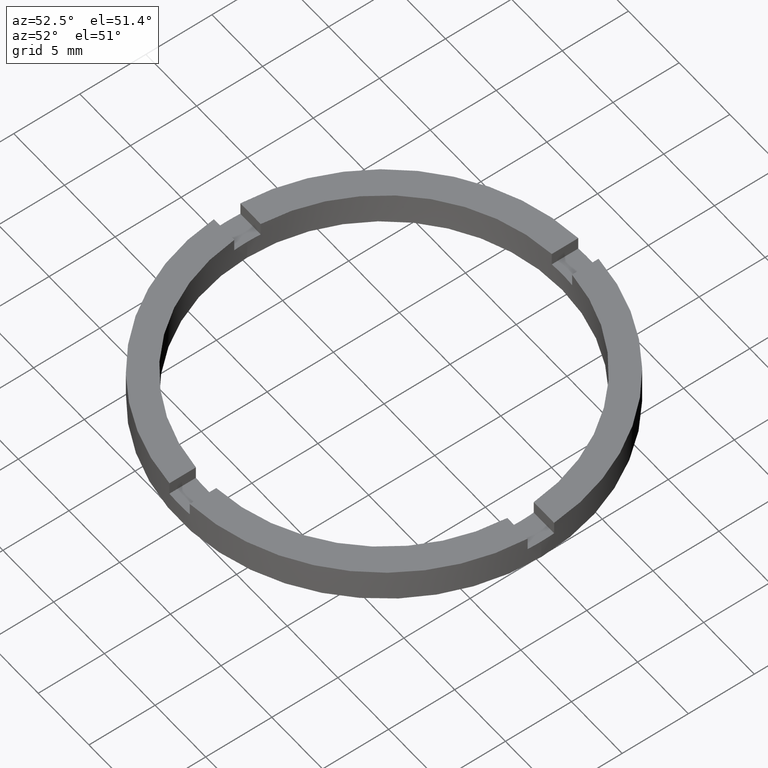
[diagram: clean part render]
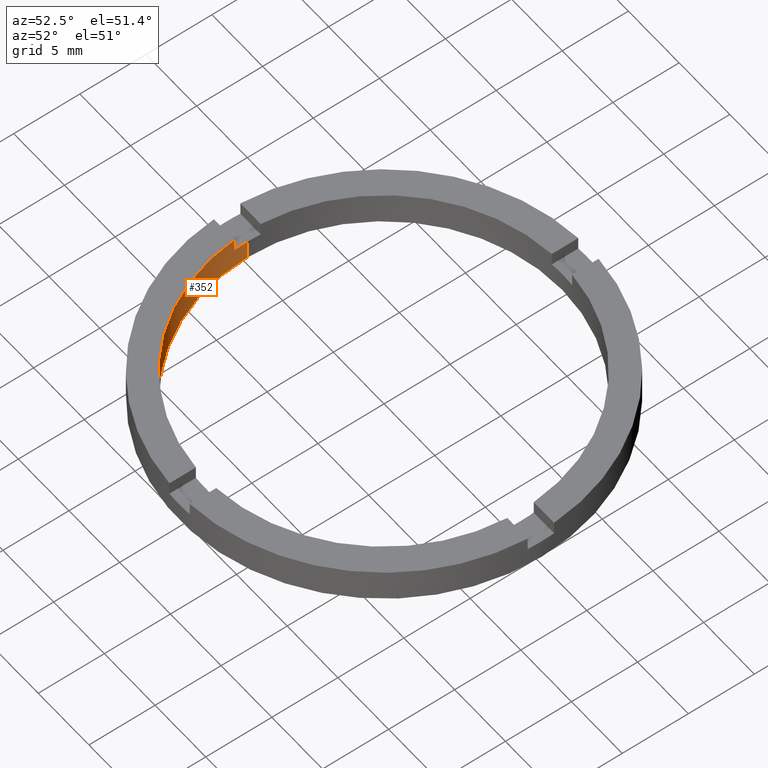
[diagram: same view with one face highlighted and labeled with its STEP entity id]
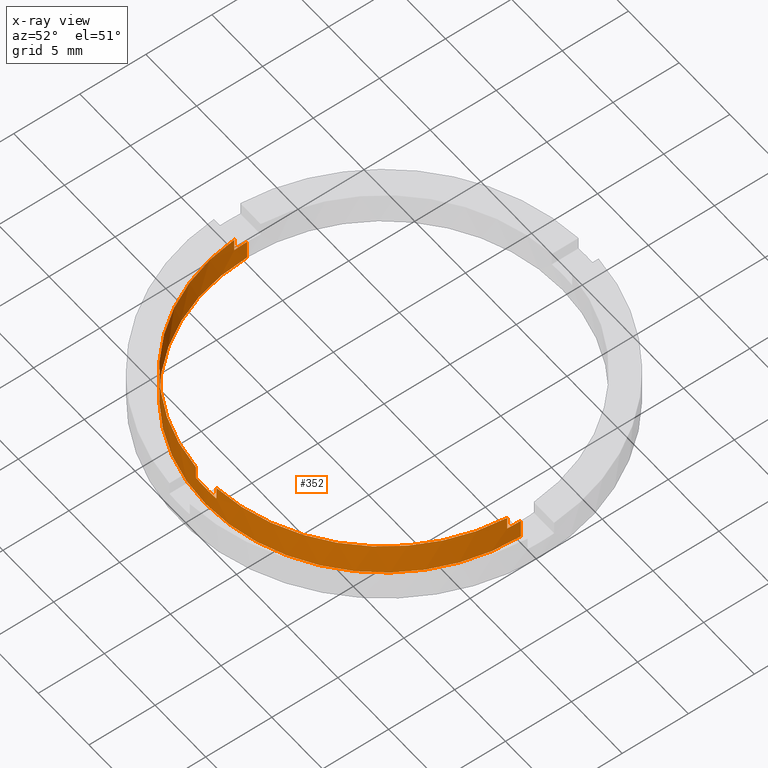
[diagram: x-ray of the same camera — body ghosted, the highlighted face saturated]
A machine part, auxiliary view. The second image highlights one B-rep face of the part: STEP entity #352.
The next image is the same camera in x-ray: the body ghosted, the highlighted face saturated — about 0% of this face is hidden behind the body in this view.
In plain terms, the highlighted cylindrical surface (partial cylindrical patch) has radius 13.5 mm, axis along (-0, -0, -1).
Its self-contained STEP definition (entity closure, byte-faithful):
#6 = CARTESIAN_POINT ( 'NONE',  ( -1.000000000000162981, -13.46291201783624736, 1.500000000000000000 ) ) ;
#11 = DIRECTION ( 'NONE',  ( 0.000000000000000000, 0.000000000000000000, 1.000000000000000000 ) ) ;
#12 = VERTEX_POINT ( 'NONE', #776 ) ;
#16 = ORIENTED_EDGE ( 'NONE', *, *, #91, .T. ) ;
#27 = EDGE_CURVE ( 'NONE', #465, #382, #358, .T. ) ;
#32 = VERTEX_POINT ( 'NONE', #53 ) ;
#39 = ORIENTED_EDGE ( 'NONE', *, *, #380, .F. ) ;
#53 = CARTESIAN_POINT ( 'NONE',  ( 0.9999999999998369082, -13.46291201783627045, 2.500000000000000000 ) ) ;
#64 = ORIENTED_EDGE ( 'NONE', *, *, #184, .T. ) ;
#66 = VERTEX_POINT ( 'NONE', #528 ) ;
#71 = AXIS2_PLACEMENT_3D ( 'NONE', #684, #144, #339 ) ;
#73 = DIRECTION ( 'NONE',  ( 1.000000000000000000, 0.000000000000000000, 0.000000000000000000 ) ) ;
#91 = EDGE_CURVE ( 'NONE', #230, #436, #648, .T. ) ;
#95 = EDGE_CURVE ( 'NONE', #12, #280, #373, .T. ) ;
#102 = VECTOR ( 'NONE', #335, 1000.000000000000000 ) ;
#103 = EDGE_CURVE ( 'NONE', #736, #280, #643, .T. ) ;
#105 = VECTOR ( 'NONE', #338, 1000.000000000000000 ) ;
#107 = CIRCLE ( 'NONE', #416, 13.50000000000000000 ) ;
#124 = FACE_OUTER_BOUND ( 'NONE', #375, .T. ) ;
#125 = AXIS2_PLACEMENT_3D ( 'NONE', #405, #629, #687 ) ;
#126 = LINE ( 'NONE', #127, #128 ) ;
#127 = CARTESIAN_POINT ( 'NONE',  ( 13.46291201783624736, -1.000000000000159206, 2.500000000000000000 ) ) ;
#128 = VECTOR ( 'NONE', #11, 1000.000000000000000 ) ;
#130 = CIRCLE ( 'NONE', #656, 13.50000000000000000 ) ;
#132 = CARTESIAN_POINT ( 'NONE',  ( -1.000000000000162981, -13.46291201783624736, 2.500000000000000000 ) ) ;
#144 = DIRECTION ( 'NONE',  ( 0.000000000000000000, 0.000000000000000000, 1.000000000000000000 ) ) ;
#145 = CIRCLE ( 'NONE', #536, 13.50000000000000000 ) ;
#167 = VERTEX_POINT ( 'NONE', #531 ) ;
#180 = VECTOR ( 'NONE', #729, 1000.000000000000000 ) ;
#184 = EDGE_CURVE ( 'NONE', #32, #617, #644, .T. ) ;
#230 = VERTEX_POINT ( 'NONE', #699 ) ;
#254 = EDGE_CURVE ( 'NONE', #167, #230, #107, .T. ) ;
#269 = CARTESIAN_POINT ( 'NONE',  ( 13.46291201783624736, -1.000000000000159206, 2.500000000000000000 ) ) ;
#271 = AXIS2_PLACEMENT_3D ( 'NONE', #691, #457, #73 ) ;
#280 = VERTEX_POINT ( 'NONE', #453 ) ;
#295 = CARTESIAN_POINT ( 'NONE',  ( -1.000000000000162981, -13.46291201783624736, 2.500000000000000000 ) ) ;
#298 = VERTEX_POINT ( 'NONE', #537 ) ;
#302 = ORIENTED_EDGE ( 'NONE', *, *, #456, .F. ) ;
#305 = ORIENTED_EDGE ( 'NONE', *, *, #103, .T. ) ;
#320 = CARTESIAN_POINT ( 'NONE',  ( 0.000000000000000000, 0.000000000000000000, 2.500000000000000000 ) ) ;
#335 = DIRECTION ( 'NONE',  ( -0.000000000000000000, -0.000000000000000000, -1.000000000000000000 ) ) ;
#338 = DIRECTION ( 'NONE',  ( -0.000000000000000000, -0.000000000000000000, -1.000000000000000000 ) ) ;
#339 = DIRECTION ( 'NONE',  ( 1.000000000000000000, 0.000000000000000000, 0.000000000000000000 ) ) ;
#352 = ADVANCED_FACE ( 'NONE', ( #124 ), #651, .F. ) ;
#358 = LINE ( 'NONE', #295, #627 ) ;
#373 = LINE ( 'NONE', #586, #102 ) ;
#375 = EDGE_LOOP ( 'NONE', ( #496, #16, #751, #745, #305, #562, #746, #487, #580, #302, #64, #39 ) ) ;
#379 = CARTESIAN_POINT ( 'NONE',  ( 13.50000000000000000, 1.653273178848926867E-15, 2.500000000000000000 ) ) ;
#380 = EDGE_CURVE ( 'NONE', #167, #617, #126, .T. ) ;
#382 = VERTEX_POINT ( 'NONE', #132 ) ;
#386 = DIRECTION ( 'NONE',  ( 0.000000000000000000, 0.000000000000000000, 1.000000000000000000 ) ) ;
#401 = EDGE_CURVE ( 'NONE', #465, #66, #130, .T. ) ;
#405 = CARTESIAN_POINT ( 'NONE',  ( 0.000000000000000000, 0.000000000000000000, 1.500000000000000000 ) ) ;
#413 = CARTESIAN_POINT ( 'NONE',  ( -13.50000000000000000, 0.000000000000000000, 2.500000000000000000 ) ) ;
#416 = AXIS2_PLACEMENT_3D ( 'NONE', #744, #514, #750 ) ;
#420 = LINE ( 'NONE', #413, #423 ) ;
#423 = VECTOR ( 'NONE', #652, 1000.000000000000000 ) ;
#427 = CARTESIAN_POINT ( 'NONE',  ( 0.000000000000000000, 0.000000000000000000, 1.500000000000000000 ) ) ;
#436 = VERTEX_POINT ( 'NONE', #480 ) ;
#453 = CARTESIAN_POINT ( 'NONE',  ( -13.46291201783625802, -1.000000000000023093, 1.500000000000000000 ) ) ;
#456 = EDGE_CURVE ( 'NONE', #32, #66, #705, .T. ) ;
#457 = DIRECTION ( 'NONE',  ( 0.000000000000000000, 0.000000000000000000, 1.000000000000000000 ) ) ;
#465 = VERTEX_POINT ( 'NONE', #6 ) ;
#480 = CARTESIAN_POINT ( 'NONE',  ( 13.50000000000000000, 1.653273178848926867E-15, 0.000000000000000000 ) ) ;
#487 = ORIENTED_EDGE ( 'NONE', *, *, #27, .F. ) ;
#496 = ORIENTED_EDGE ( 'NONE', *, *, #254, .T. ) ;
#506 = DIRECTION ( 'NONE',  ( 1.000000000000000000, 0.000000000000000000, 0.000000000000000000 ) ) ;
#514 = DIRECTION ( 'NONE',  ( 0.000000000000000000, 0.000000000000000000, 1.000000000000000000 ) ) ;
#516 = CARTESIAN_POINT ( 'NONE',  ( 0.000000000000000000, 0.000000000000000000, 2.500000000000000000 ) ) ;
#528 = CARTESIAN_POINT ( 'NONE',  ( 0.9999999999998369082, -13.46291201783627045, 1.500000000000000000 ) ) ;
#531 = CARTESIAN_POINT ( 'NONE',  ( 13.46291201783624736, -1.000000000000159206, 1.500000000000000000 ) ) ;
#536 = AXIS2_PLACEMENT_3D ( 'NONE', #516, #386, #506 ) ;
#537 = CARTESIAN_POINT ( 'NONE',  ( -13.50000000000000000, 0.000000000000000000, 0.000000000000000000 ) ) ;
#541 = DIRECTION ( 'NONE',  ( -0.000000000000000000, -0.000000000000000000, -1.000000000000000000 ) ) ;
#562 = ORIENTED_EDGE ( 'NONE', *, *, #95, .F. ) ;
#580 = ORIENTED_EDGE ( 'NONE', *, *, #401, .T. ) ;
#583 = EDGE_CURVE ( 'NONE', #298, #436, #666, .T. ) ;
#586 = CARTESIAN_POINT ( 'NONE',  ( -13.46291201783625802, -1.000000000000023093, 2.500000000000000000 ) ) ;
#602 = DIRECTION ( 'NONE',  ( -0.000000000000000000, 0.000000000000000000, 1.000000000000000000 ) ) ;
#609 = CARTESIAN_POINT ( 'NONE',  ( 0.9999999999998369082, -13.46291201783627045, 2.500000000000000000 ) ) ;
#617 = VERTEX_POINT ( 'NONE', #269 ) ;
#627 = VECTOR ( 'NONE', #780, 1000.000000000000000 ) ;
#629 = DIRECTION ( 'NONE',  ( 0.000000000000000000, 0.000000000000000000, 1.000000000000000000 ) ) ;
#643 = CIRCLE ( 'NONE', #125, 13.50000000000000000 ) ;
#644 = CIRCLE ( 'NONE', #271, 13.50000000000000000 ) ;
#648 = LINE ( 'NONE', #379, #105 ) ;
#651 = CYLINDRICAL_SURFACE ( 'NONE', #723, 13.50000000000000000 ) ;
#652 = DIRECTION ( 'NONE',  ( -0.000000000000000000, -0.000000000000000000, -1.000000000000000000 ) ) ;
#656 = AXIS2_PLACEMENT_3D ( 'NONE', #427, #602, #767 ) ;
#659 = DIRECTION ( 'NONE',  ( -1.000000000000000000, 0.000000000000000000, 0.000000000000000000 ) ) ;
#664 = EDGE_CURVE ( 'NONE', #12, #382, #145, .T. ) ;
#666 = CIRCLE ( 'NONE', #71, 13.50000000000000000 ) ;
#684 = CARTESIAN_POINT ( 'NONE',  ( 0.000000000000000000, 0.000000000000000000, 0.000000000000000000 ) ) ;
#687 = DIRECTION ( 'NONE',  ( 1.000000000000000000, 0.000000000000000000, 0.000000000000000000 ) ) ;
#691 = CARTESIAN_POINT ( 'NONE',  ( 0.000000000000000000, 0.000000000000000000, 2.500000000000000000 ) ) ;
#699 = CARTESIAN_POINT ( 'NONE',  ( 13.50000000000000000, 1.653273178848926867E-15, 1.500000000000000000 ) ) ;
#705 = LINE ( 'NONE', #609, #180 ) ;
#706 = CARTESIAN_POINT ( 'NONE',  ( -13.50000000000000000, 0.000000000000000000, 1.500000000000000000 ) ) ;
#723 = AXIS2_PLACEMENT_3D ( 'NONE', #320, #541, #659 ) ;
#729 = DIRECTION ( 'NONE',  ( -0.000000000000000000, -0.000000000000000000, -1.000000000000000000 ) ) ;
#736 = VERTEX_POINT ( 'NONE', #706 ) ;
#744 = CARTESIAN_POINT ( 'NONE',  ( 0.000000000000000000, 0.000000000000000000, 1.500000000000000000 ) ) ;
#745 = ORIENTED_EDGE ( 'NONE', *, *, #771, .F. ) ;
#746 = ORIENTED_EDGE ( 'NONE', *, *, #664, .T. ) ;
#750 = DIRECTION ( 'NONE',  ( 1.000000000000000000, 0.000000000000000000, 0.000000000000000000 ) ) ;
#751 = ORIENTED_EDGE ( 'NONE', *, *, #583, .F. ) ;
#767 = DIRECTION ( 'NONE',  ( 1.000000000000000000, 0.000000000000000000, 0.000000000000000000 ) ) ;
#771 = EDGE_CURVE ( 'NONE', #736, #298, #420, .T. ) ;
#776 = CARTESIAN_POINT ( 'NONE',  ( -13.46291201783625802, -1.000000000000023093, 2.500000000000000000 ) ) ;
#780 = DIRECTION ( 'NONE',  ( 0.000000000000000000, 0.000000000000000000, 1.000000000000000000 ) ) ;